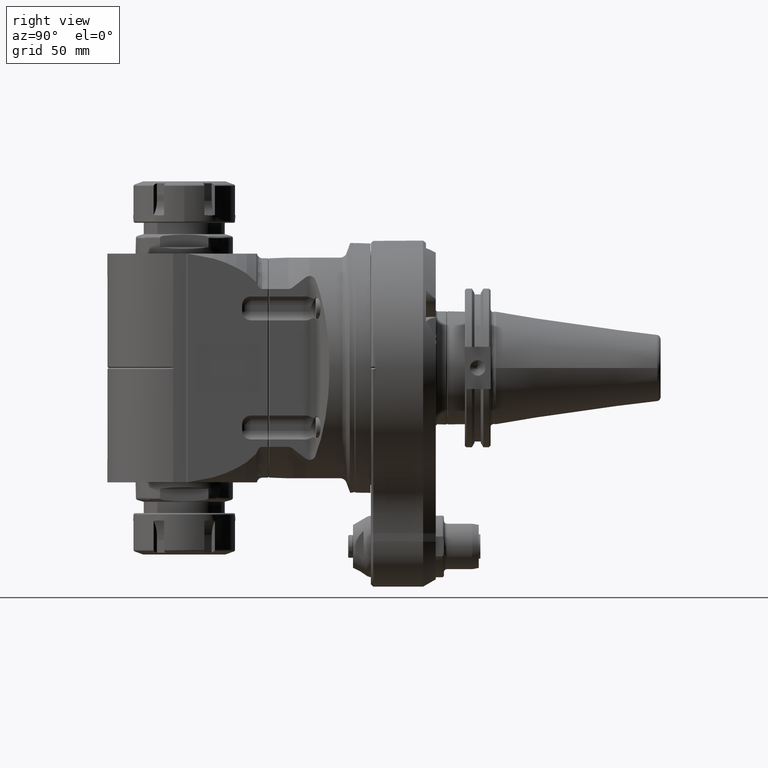
[diagram: clean part render]
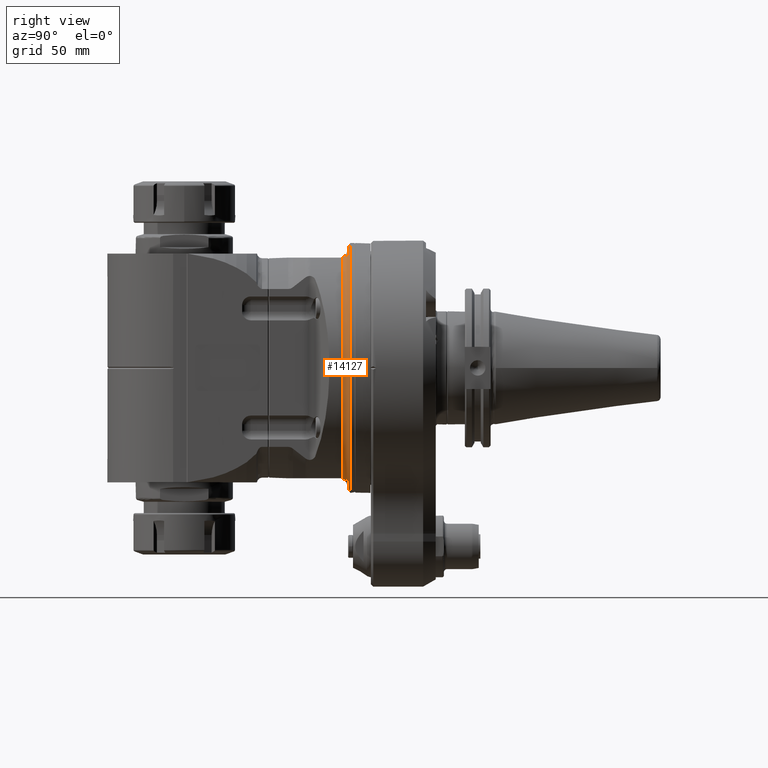
[diagram: same view with one face highlighted and labeled with its STEP entity id]
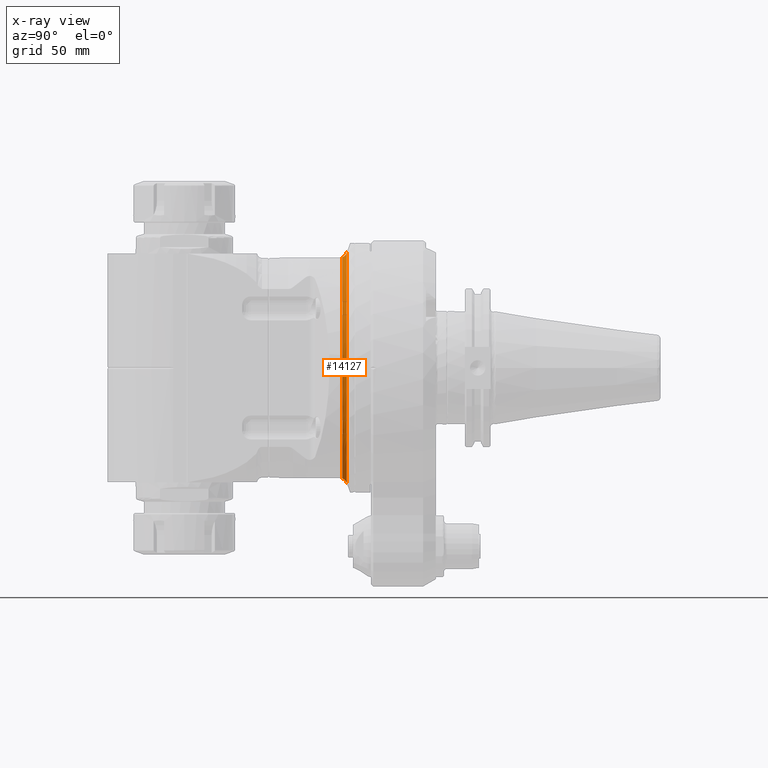
[diagram: x-ray of the same camera — body ghosted, the highlighted face saturated]
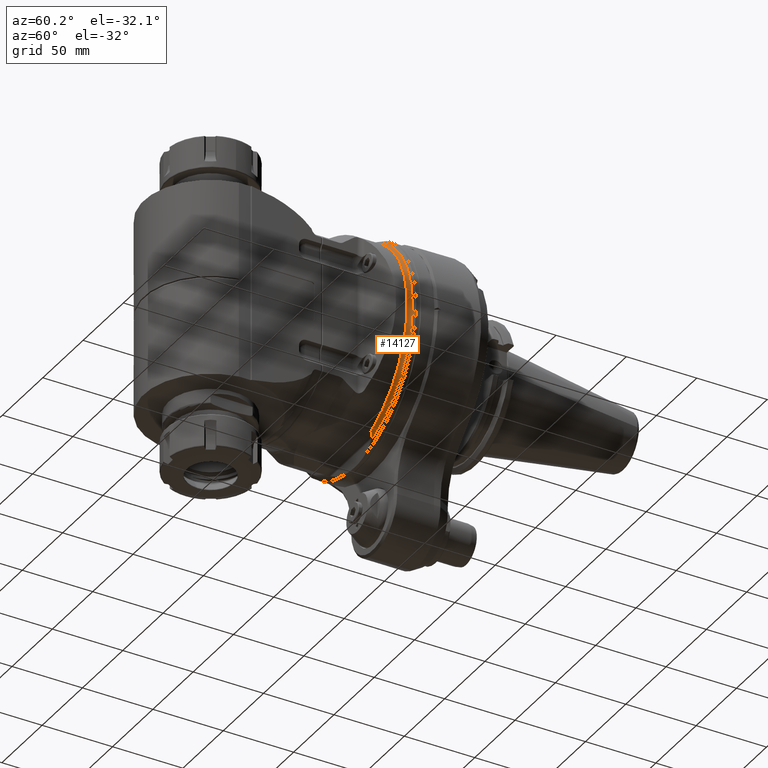
[diagram: same view with one face highlighted and labeled with its STEP entity id]
A machine part, right view. The second image highlights one B-rep face of the part: STEP entity #14127.
The next image is the same camera in x-ray: the body ghosted, the highlighted face saturated — about 0% of this face is hidden behind the body in this view.
A second angle (auxiliary view) of the same face is appended — the face is thin or edge-on in the first view.
In plain terms, the highlighted toroidal blend (fillet) surface has major radius 78 mm and minor (blend) radius 4 mm.
Its self-contained STEP definition (entity closure, byte-faithful):
#382=TOROIDAL_SURFACE('',#15075,78.,4.);
#437=B_SPLINE_CURVE_WITH_KNOTS('',3,(#21359,#21360,#21361,#21362),
 .UNSPECIFIED.,.F.,.F.,(4,4),(4.98704594117018,5.11044988761001),
 .UNSPECIFIED.);
#442=B_SPLINE_CURVE_WITH_KNOTS('',3,(#21400,#21401,#21402,#21403,#21404,
#21405,#21406,#21407),.UNSPECIFIED.,.F.,.F.,(4,2,2,4),(7.74686703670188,
7.98106830494841,8.24484475115428,8.43829041282563),.UNSPECIFIED.);
#443=B_SPLINE_CURVE_WITH_KNOTS('',3,(#21414,#21415,#21416,#21417,#21418,
#21419,#21420,#21421),.UNSPECIFIED.,.F.,.F.,(4,2,2,4),(9.32887060330587,
9.49150661975827,9.67841821268533,9.76973842317712),.UNSPECIFIED.);
#444=B_SPLINE_CURVE_WITH_KNOTS('',3,(#21422,#21423,#21424,#21425),
 .UNSPECIFIED.,.F.,.F.,(4,4),(-5.11044988760888,-4.98703564246779),
 .UNSPECIFIED.);
#2988=FACE_OUTER_BOUND('',#3870,.T.);
#3870=EDGE_LOOP('',(#9334,#9335,#9336,#9337,#9338,#9339));
#4846=CIRCLE('',#15076,75.17157287525);
#4847=CIRCLE('',#15077,74.);
#5685=VERTEX_POINT('',#21355);
#5687=VERTEX_POINT('',#21358);
#5692=VERTEX_POINT('',#21391);
#5693=VERTEX_POINT('',#21409);
#5694=VERTEX_POINT('',#21411);
#5695=VERTEX_POINT('',#21413);
#7103=EDGE_CURVE('',#5685,#5687,#437,.T.);
#7111=EDGE_CURVE('',#5685,#5692,#442,.T.);
#7112=EDGE_CURVE('',#5693,#5687,#4846,.T.);
#7113=EDGE_CURVE('',#5692,#5694,#4847,.T.);
#7114=EDGE_CURVE('',#5694,#5695,#443,.T.);
#7115=EDGE_CURVE('',#5693,#5695,#444,.T.);
#9334=ORIENTED_EDGE('',*,*,#7112,.T.);
#9335=ORIENTED_EDGE('',*,*,#7103,.F.);
#9336=ORIENTED_EDGE('',*,*,#7111,.T.);
#9337=ORIENTED_EDGE('',*,*,#7113,.T.);
#9338=ORIENTED_EDGE('',*,*,#7114,.T.);
#9339=ORIENTED_EDGE('',*,*,#7115,.F.);
#14127=ADVANCED_FACE('',(#2988),#382,.F.);
#15075=AXIS2_PLACEMENT_3D('',#21408,#16861,#16862);
#15076=AXIS2_PLACEMENT_3D('',#21410,#16863,#16864);
#15077=AXIS2_PLACEMENT_3D('',#21412,#16865,#16866);
#16861=DIRECTION('center_axis',(-1.,0.,0.));
#16862=DIRECTION('ref_axis',(0.,1.,0.));
#16863=DIRECTION('center_axis',(1.,0.,0.));
#16864=DIRECTION('ref_axis',(0.,0.947417584812167,0.319999874982289));
#16865=DIRECTION('center_axis',(-1.,0.,0.));
#16866=DIRECTION('ref_axis',(0.,-0.921176680239488,0.389144605234295));
#21355=CARTESIAN_POINT('',(-6.95797526510424,-70.6319996554328,25.1410772386536));
#21358=CARTESIAN_POINT('',(-7.17158047474774,-71.2189021085633,24.0548145226335));
#21359=CARTESIAN_POINT('Ctrl Pts',(-6.957976422536,-70.6320185892873,25.1410098090238));
#21360=CARTESIAN_POINT('Ctrl Pts',(-7.02957281999649,-70.8287280746243,
24.7728036137406));
#21361=CARTESIAN_POINT('Ctrl Pts',(-7.1006539691325,-71.0240219268244,24.4101553227362));
#21362=CARTESIAN_POINT('Ctrl Pts',(-7.17157287525419,-71.2188700200061,
24.0548939222993));
#21391=CARTESIAN_POINT('',(-4.343145750508,-68.16707433772,28.79670078734));
#21400=CARTESIAN_POINT('Ctrl Pts',(-6.95796398037874,-70.6319844064898,
25.1410737917105));
#21401=CARTESIAN_POINT('Ctrl Pts',(-6.81316283748098,-70.2341251357408,
25.8858184390811));
#21402=CARTESIAN_POINT('Ctrl Pts',(-6.6037946823375,-69.8627047936979,26.4148519537564));
#21403=CARTESIAN_POINT('Ctrl Pts',(-6.08307953438735,-69.1919057263993,
27.3093762815531));
#21404=CARTESIAN_POINT('Ctrl Pts',(-5.73556122403844,-68.868619285138,27.6908769247695));
#21405=CARTESIAN_POINT('Ctrl Pts',(-5.01750962660975,-68.4192055733218,
28.3116210927777));
#21406=CARTESIAN_POINT('Ctrl Pts',(-4.68836143207717,-68.2701074920183,
28.5528024067552));
#21407=CARTESIAN_POINT('Ctrl Pts',(-4.34314575050837,-68.1670743377209,
28.7967007873409));
#21408=CARTESIAN_POINT('Origin',(-4.343145750508,0.,0.));
#21409=CARTESIAN_POINT('',(-7.17157709459403,71.2188878366846,24.054849836054));
#21410=CARTESIAN_POINT('Origin',(-7.171572875254,0.,0.));
#21411=CARTESIAN_POINT('',(-4.343145750508,68.16707433772,28.79670078734));
#21412=CARTESIAN_POINT('Origin',(-4.343145750508,0.,0.));
#21413=CARTESIAN_POINT('',(-6.95795602400828,70.6319572610752,25.1411376411903));
#21414=CARTESIAN_POINT('Ctrl Pts',(-4.34314575050919,68.1670743377204,28.7967007873419));
#21415=CARTESIAN_POINT('Ctrl Pts',(-4.82310001508465,68.3103216014978,28.457608231195));
#21416=CARTESIAN_POINT('Ctrl Pts',(-5.26443993524709,68.540470399437,28.1290282657255));
#21417=CARTESIAN_POINT('Ctrl Pts',(-6.0861996930378,69.1762238051591,27.3095816897845));
#21418=CARTESIAN_POINT('Ctrl Pts',(-6.43398358387534,69.5927828537826,26.8151209736538));
#21419=CARTESIAN_POINT('Ctrl Pts',(-6.80576582661951,70.2523667971806,25.8152678689955));
#21420=CARTESIAN_POINT('Ctrl Pts',(-6.89277132509609,70.4528642060108,25.4763610588474));
#21421=CARTESIAN_POINT('Ctrl Pts',(-6.95795223994638,70.631952148612,25.1411341741977));
#21422=CARTESIAN_POINT('Ctrl Pts',(-7.17157287525419,71.2188700199998,24.054893922318));
#21423=CARTESIAN_POINT('Ctrl Pts',(-7.10064805058086,71.0240056657311,24.4101849711666));
#21424=CARTESIAN_POINT('Ctrl Pts',(-7.02956095217625,70.8286954680499,24.7728641372029));
#21425=CARTESIAN_POINT('Ctrl Pts',(-6.95795849731483,70.6319693401406,25.1411019949935));